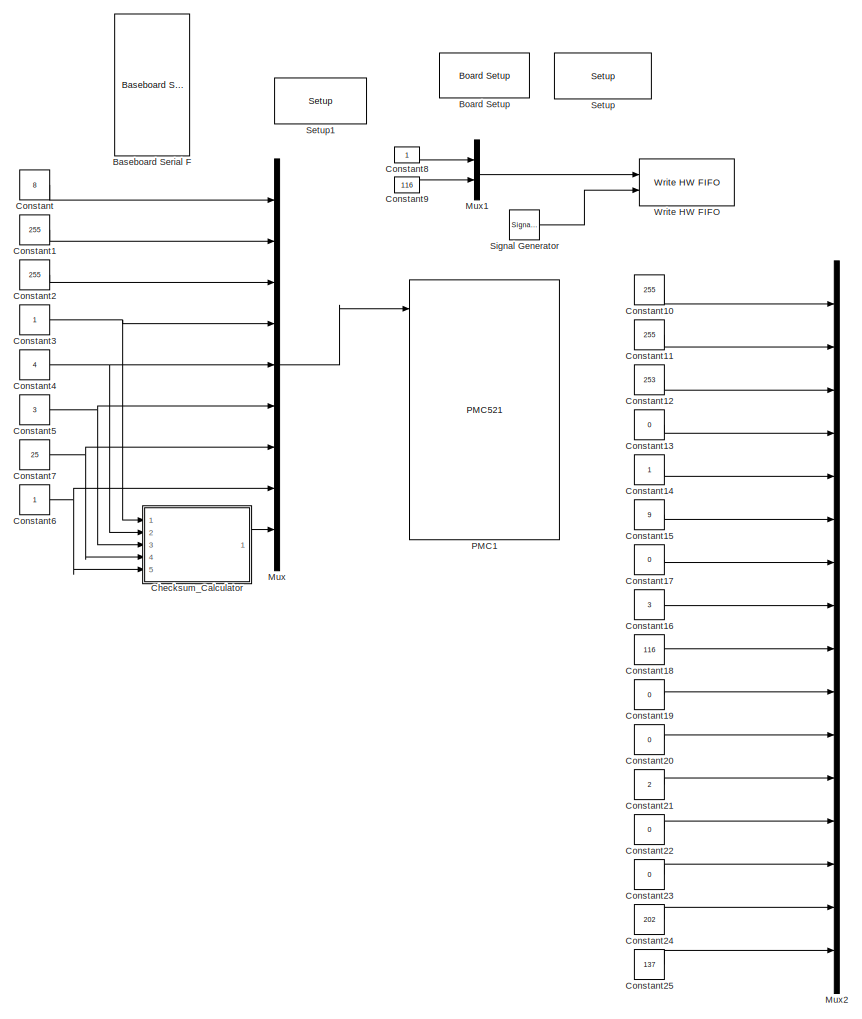
[diagram: root canvas - part 1/3, left side, full height]
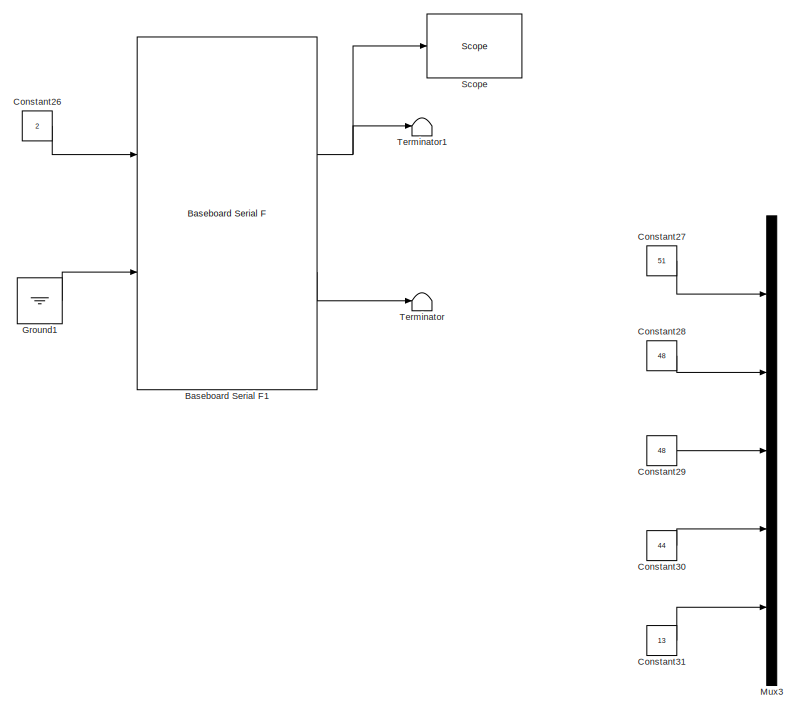
[diagram: root canvas - part 2/3, central region]
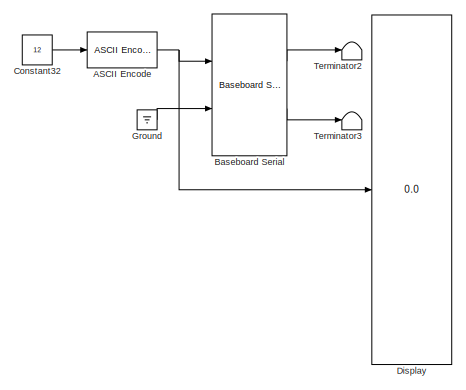
[diagram: root canvas - part 3/3, middle right region]
MODEL slx_31dcd654e0d6
KIND model
CONFIG AbsTol = auto
CONFIG EnableMultiTasking = on
CONFIG FixedStep = auto
CONFIG MaxStep = auto
CONFIG MinStep = auto
CONFIG RelTol = 1e-3
CONFIG SampleTimeConstraint = Unconstrained
CONFIG Solver = FixedStepAuto
CONFIG SolverName = FixedStepAuto
CONFIG StartTime = 0
CONFIG StopTime = inf
BLOCK [Reference] ASCII Encode   REF=xpcseriallib/ASCII Encode 
  Ports = [1, 1]
  SourceBlock = xpcseriallib/ASCII Encode
  SourceProductBaseCode = XP
  SourceProductName = Simulink Real-Time
  SourceType = ASCII Encode
BLOCK [Reference] Baseboard Serial  REF=xpcseriallib/Mainboard/Baseboard
Serial
  Ports = [2, 2]
  SourceBlock = xpcseriallib/Mainboard/Baseboard\nSerial
  SourceProductBaseCode = XP
  SourceProductName = Simulink Real-Time
  SourceType = Baseboard RS232 Send Receive
BLOCK [Reference] Baseboard Serial F  REF=xpcseriallib/Mainboard/Baseboard
Serial F
  Commented = on
  Ports = [2, 2]
  SourceBlock = xpcseriallib/Mainboard/Baseboard\nSerial F
  SourceProductBaseCode = XP
  SourceProductName = Simulink Real-Time
  SourceType = Baseboard RS232 Send Receive
BLOCK [Reference] Baseboard Serial F1  REF=xpcseriallib/Mainboard/Baseboard
Serial F
  Commented = on
  Ports = [2, 2]
  SourceBlock = xpcseriallib/Mainboard/Baseboard\nSerial F
  SourceProductBaseCode = XP
  SourceProductName = Simulink Real-Time
  SourceType = Baseboard RS232 Send Receive
BLOCK [Reference] Board Setup  REF=speedgoatlib_IO503/Speedgoat IO503
Internal blocks/Board Setup
  Commented = on
  Ports = []
  SourceBlock = speedgoatlib_IO503/Speedgoat IO503\nInternal blocks/Board Setup
  SourceProductName = Simulink Real-Time: Speedgoat I/O Driver Library
  SourceType = board_setup_XR17D15x
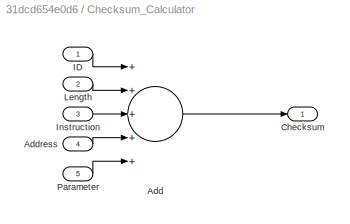
BLOCK [SubSystem] Checksum_Calculator
  Commented = on
  Ports = [5, 1]
  RequestExecContextInheritance = off
BLOCK [Sum] Checksum_Calculator/Add
  InputSameDT = off
  Inputs = +++++
  OutDataTypeStr = Inherit: Inherit via internal rule
  OutMax = 255
  Ports = [5, 1]
  SaturateOnIntegerOverflow = off
BLOCK [Inport] Checksum_Calculator/Address
  IconDisplay = Port number
  Port = 4
BLOCK [Outport] Checksum_Calculator/Checksum 
  IconDisplay = Port number
BLOCK [Inport] Checksum_Calculator/ID
  IconDisplay = Port number
BLOCK [Inport] Checksum_Calculator/Instruction
  IconDisplay = Port number
  Port = 3
BLOCK [Inport] Checksum_Calculator/Length
  IconDisplay = Port number
  Port = 2
BLOCK [Inport] Checksum_Calculator/Parameter
  IconDisplay = Port number
  Port = 5
BLOCK [Constant] Constant
  Commented = on
  OutDataTypeStr = uint8
  Value = 8
BLOCK [Constant] Constant1
  Commented = on
  OutDataTypeStr = uint8
  Value = 255
BLOCK [Constant] Constant10
  Commented = on
  OutDataTypeStr = uint8
  Value = 255
BLOCK [Constant] Constant11
  Commented = on
  OutDataTypeStr = uint8
  Value = 255
BLOCK [Constant] Constant12
  Commented = on
  OutDataTypeStr = uint8
  Value = 253
BLOCK [Constant] Constant13
  Commented = on
  OutDataTypeStr = uint8
  Value = 0
BLOCK [Constant] Constant14
  Commented = on
  OutDataTypeStr = uint8
BLOCK [Constant] Constant15
  Commented = on
  OutDataTypeStr = uint8
  Value = 9
BLOCK [Constant] Constant16
  Commented = on
  OutDataTypeStr = uint8
  Value = 3
BLOCK [Constant] Constant17
  Commented = on
  OutDataTypeStr = uint8
  Value = 0
BLOCK [Constant] Constant18
  Commented = on
  OutDataTypeStr = uint8
  Value = 116
BLOCK [Constant] Constant19
  Commented = on
  OutDataTypeStr = uint8
  Value = 0
BLOCK [Constant] Constant2
  Commented = on
  OutDataTypeStr = uint8
  Value = 255
BLOCK [Constant] Constant20
  Commented = on
  OutDataTypeStr = uint8
  Value = 0
BLOCK [Constant] Constant21
  Commented = on
  OutDataTypeStr = uint8
  Value = 2
BLOCK [Constant] Constant22
  Commented = on
  OutDataTypeStr = uint8
  Value = 0
BLOCK [Constant] Constant23
  Commented = on
  OutDataTypeStr = uint8
  Value = 0
BLOCK [Constant] Constant24
  Commented = on
  OutDataTypeStr = uint8
  Value = 202
BLOCK [Constant] Constant25
  Commented = on
  OutDataTypeStr = uint8
  Value = 137
BLOCK [Constant] Constant26
  Commented = on
  OutDataTypeStr = uint8
  Value = 2
BLOCK [Constant] Constant27
  Commented = on
  OutDataTypeStr = uint8
  Value = 51
BLOCK [Constant] Constant28
  Commented = on
  OutDataTypeStr = uint8
  Value = 48
BLOCK [Constant] Constant29
  Commented = on
  OutDataTypeStr = uint8
  Value = 48
BLOCK [Constant] Constant3
  Commented = on
  OutDataTypeStr = uint8
BLOCK [Constant] Constant30
  Commented = on
  OutDataTypeStr = uint8
  Value = 44
BLOCK [Constant] Constant31
  Commented = on
  OutDataTypeStr = uint8
  Value = 13
BLOCK [Constant] Constant32
  Value = 12
BLOCK [Constant] Constant4
  Commented = on
  OutDataTypeStr = uint8
  Value = 4
BLOCK [Constant] Constant5
  Commented = on
  OutDataTypeStr = uint8
  Value = 3
BLOCK [Constant] Constant6
  Commented = on
  OutDataTypeStr = uint8
BLOCK [Constant] Constant7
  Commented = on
  OutDataTypeStr = uint8
  Value = 25
BLOCK [Constant] Constant8
  Commented = on
  OutDataTypeStr = uint8
BLOCK [Constant] Constant9
  Commented = on
  OutDataTypeStr = uint8
  Value = 116
BLOCK [Display] Display
  Decimation = 1
  Ports = [1]
BLOCK [Ground] Ground
BLOCK [Ground] Ground1
  Commented = on
BLOCK [Mux] Mux
  Commented = on
  DisplayOption = bar
  Inputs = 9
  Ports = [9, 1]
BLOCK [Mux] Mux1
  Commented = on
  DisplayOption = bar
  Inputs = 2
  Ports = [2, 1]
BLOCK [Mux] Mux2
  Commented = on
  DisplayOption = bar
  Inputs = 16
  Ports = [16, 1]
BLOCK [Mux] Mux3
  Commented = on
  DisplayOption = bar
  Inputs = 5
  Ports = [5, 1]
BLOCK [Reference] PMC1  REF=speedgoatlib_IO502/PMC521
  Commented = on
  Ports = [8, 8]
  SourceBlock = speedgoatlib_IO502/PMC521
  SourceProductName = Simulink Real-Time: Speedgoat I/O Driver Library
  SourceType = RS232 Send Receive
BLOCK [Reference] Scope   REF=slrtlib/Displays and
Logging/Scope 
  Commented = on
  Ports = [1]
  SourceBlock = slrtlib/Displays and\nLogging/Scope
  SourceProductBaseCode = XP
  SourceProductName = Simulink Real-Time
  SourceType = xpcscopeblock
BLOCK [Reference] Setup  REF=speedgoatlib_IO503/Speedgoat IO503
Internal blocks/Setup
  Commented = on
  Ports = []
  SourceBlock = speedgoatlib_IO503/Speedgoat IO503\nInternal blocks/Setup
  SourceProductName = Simulink Real-Time: Speedgoat I/O Driver Library
  SourceType = setup_XR17D15x
BLOCK [Reference] Setup1  REF=xpcseriallib/Mainboard/Baseboard
Serial
Internal
 blocks/Setup
  Commented = on
  Ports = []
  SourceBlock = xpcseriallib/Mainboard/Baseboard\nSerial\nInternal\n blocks/Setup
  SourceProductBaseCode = XP
  SourceProductName = Simulink Real-Time
  SourceType = setup
BLOCK [SignalGenerator] Signal Generator
  Commented = on
  Frequency = 4
  Ports = [0, 1]
  WaveForm = square
BLOCK [Terminator] Terminator
  Commented = on
BLOCK [Terminator] Terminator1
  Commented = on
BLOCK [Terminator] Terminator2
BLOCK [Terminator] Terminator3
BLOCK [Reference] Write HW FIFO  REF=speedgoatlib_IO503/Speedgoat IO503
Internal blocks/Write HW FIFO
  Commented = on
  Ports = [2]
  SourceBlock = speedgoatlib_IO503/Speedgoat IO503\nInternal blocks/Write HW FIFO
  SourceProductName = Simulink Real-Time: Speedgoat I/O Driver Library
  SourceType = write_hw_fifo_XR17D15x
NET ASCII Encode :1 -> Baseboard Serial:1, Display:1
NET Baseboard Serial F1:1 -> Scope :1, Terminator1:1
LINE Baseboard Serial F1:2 -> Terminator:1
LINE Baseboard Serial:1 -> Terminator2:1
LINE Baseboard Serial:2 -> Terminator3:1
LINE Checksum_Calculator/Add:1 -> Checksum_Calculator/Checksum :1
LINE Checksum_Calculator/Address:1 -> Checksum_Calculator/Add:4
LINE Checksum_Calculator/ID:1 -> Checksum_Calculator/Add:1
LINE Checksum_Calculator/Instruction:1 -> Checksum_Calculator/Add:3
LINE Checksum_Calculator/Length:1 -> Checksum_Calculator/Add:2
LINE Checksum_Calculator/Parameter:1 -> Checksum_Calculator/Add:5
LINE Checksum_Calculator:1 -> Mux:9
LINE Constant10:1 -> Mux2:1
LINE Constant11:1 -> Mux2:2
LINE Constant12:1 -> Mux2:3
LINE Constant13:1 -> Mux2:4
LINE Constant14:1 -> Mux2:5
LINE Constant15:1 -> Mux2:6
LINE Constant16:1 -> Mux2:8
LINE Constant17:1 -> Mux2:7
LINE Constant18:1 -> Mux2:9
LINE Constant19:1 -> Mux2:10
LINE Constant1:1 -> Mux:2
LINE Constant20:1 -> Mux2:11
LINE Constant21:1 -> Mux2:12
LINE Constant22:1 -> Mux2:13
LINE Constant23:1 -> Mux2:14
LINE Constant24:1 -> Mux2:15
LINE Constant25:1 -> Mux2:16
LINE Constant26:1 -> Baseboard Serial F1:1
LINE Constant27:1 -> Mux3:1
LINE Constant28:1 -> Mux3:2
LINE Constant29:1 -> Mux3:3
LINE Constant2:1 -> Mux:3
LINE Constant30:1 -> Mux3:4
LINE Constant31:1 -> Mux3:5
LINE Constant32:1 -> ASCII Encode :1
NET Constant3:1 -> Checksum_Calculator:1, Mux:4
NET Constant4:1 -> Checksum_Calculator:2, Mux:5
NET Constant5:1 -> Checksum_Calculator:3, Mux:6
NET Constant6:1 -> Checksum_Calculator:5, Mux:8
NET Constant7:1 -> Checksum_Calculator:4, Mux:7
LINE Constant8:1 -> Mux1:1
LINE Constant9:1 -> Mux1:2
LINE Constant:1 -> Mux:1
LINE Ground1:1 -> Baseboard Serial F1:2
LINE Ground:1 -> Baseboard Serial:2
LINE Mux1:1 -> Write HW FIFO:1
LINE Mux:1 -> PMC1:1
LINE Signal Generator:1 -> Write HW FIFO:2
note: NET lines group one-source signal fan-out (src -> all destinations, sorted); 1:1 wires keep LINE
